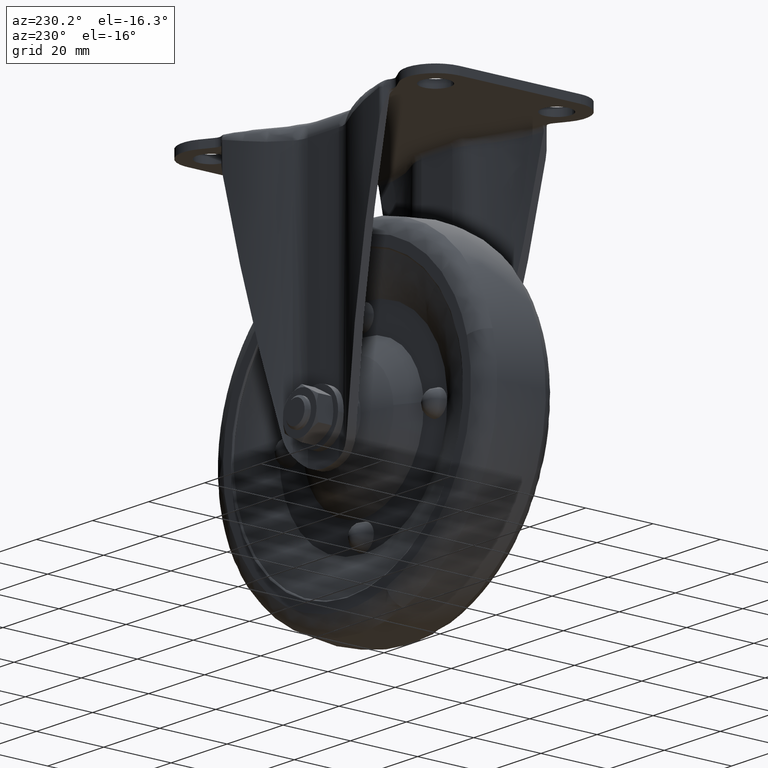
[diagram: clean part render]
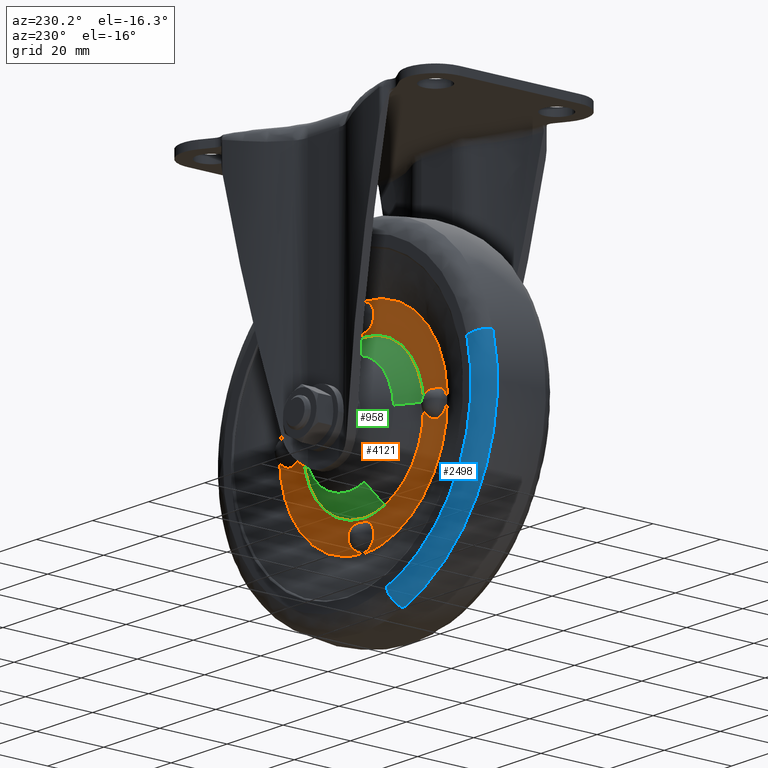
[diagram: same view with three faces highlighted in distinct colors, each labeled with its STEP entity id]
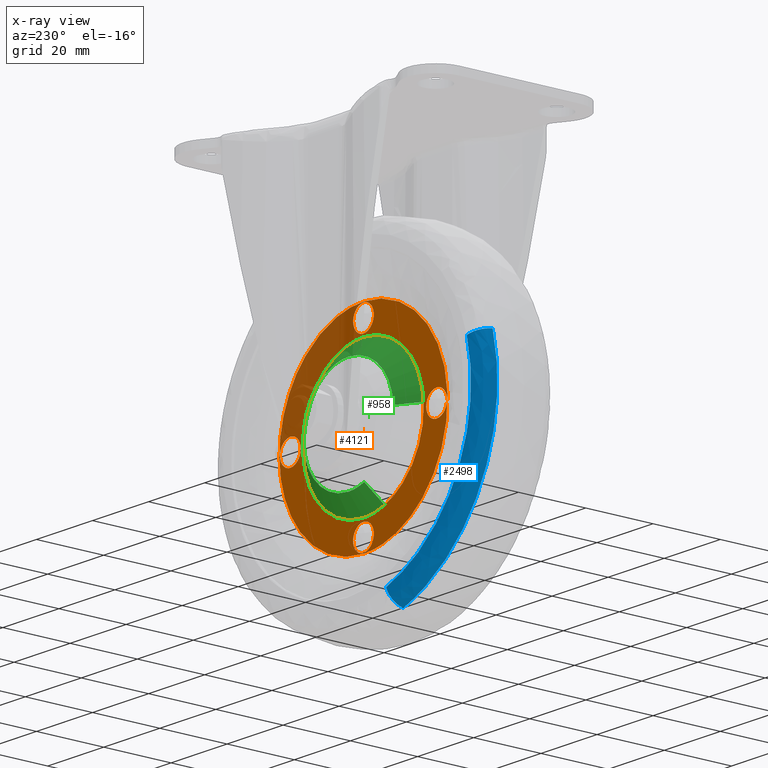
[diagram: x-ray of the same camera — body ghosted, the three highlighted faces saturated]
A machine part, auxiliary view with three faces highlighted in distinct colors.
The next image is the same camera in x-ray (body ghosted, the three faces saturated) — at least one of them is partly hidden behind the body in this view.
Their STEP definitions:

[orange] entity #4121 — the highlighted face is a freeform B-spline surface patch.
#897=CARTESIAN_POINT('',(-21.459898166078670,6.100000502482800,-71.687456399891289));
#898=VERTEX_POINT('',#897);
#904=CARTESIAN_POINT('',(0.0,6.100000502495250,-51.500000000000000));
#905=VERTEX_POINT('',#904);
#906=CARTESIAN_POINT('',(0.0,6.100000502495250,-51.500000000000000));
#907=CARTESIAN_POINT('',(-20.225180438267863,6.100000502495250,-51.500000000000000));
#908=CARTESIAN_POINT('',(-21.459898166078677,6.100000502482800,-71.687456399891289));
#916=(BOUNDED_CURVE()B_SPLINE_CURVE(2,(#906,#907,#908),.UNSPECIFIED.,.F.,.U.)B_SPLINE_CURVE_WITH_KNOTS((3,3),(0.500000000000000,0.739332962240226),.UNSPECIFIED.)CURVE()GEOMETRIC_REPRESENTATION_ITEM()RATIONAL_B_SPLINE_CURVE((1.0,0.719603993285207,0.976072041669468))REPRESENTATION_ITEM(''));
#917=EDGE_CURVE('',#905,#898,#916,.T.);
#919=CARTESIAN_POINT('',(0.0,6.100000502495250,-94.500000000000000));
#920=VERTEX_POINT('',#919);
#921=CARTESIAN_POINT('',(0.0,6.100000502495250,-94.500000000000000));
#922=CARTESIAN_POINT('',(21.499999999999996,6.100000502495252,-94.500000000000000));
#923=CARTESIAN_POINT('',(21.500000000000000,6.100000502495250,-73.0));
#924=CARTESIAN_POINT('',(21.499999999999996,6.100000502495252,-51.500000000000000));
#925=CARTESIAN_POINT('',(0.0,6.100000502495250,-51.500000000000000));
#933=(BOUNDED_CURVE()B_SPLINE_CURVE(2,(#921,#922,#923,#924,#925),.UNSPECIFIED.,.F.,.U.)B_SPLINE_CURVE_WITH_KNOTS((3,2,3),(0.0,0.250000000000000,0.500000000000000),.UNSPECIFIED.)CURVE()GEOMETRIC_REPRESENTATION_ITEM()RATIONAL_B_SPLINE_CURVE((1.0,0.707106781186548,1.0,0.707106781186548,1.0))REPRESENTATION_ITEM(''));
#934=EDGE_CURVE('',#920,#905,#933,.T.);
#936=CARTESIAN_POINT('',(-7.559786449543797,6.100000502485093,-93.127086943664438));
#937=VERTEX_POINT('',#936);
#938=CARTESIAN_POINT('',(-7.559786449543797,6.100000502485093,-93.127086943664452));
#939=CARTESIAN_POINT('',(-3.904558800568472,6.100000502495250,-94.500000000000000));
#940=CARTESIAN_POINT('',(0.0,6.100000502495250,-94.500000000000000));
#948=(BOUNDED_CURVE()B_SPLINE_CURVE(2,(#938,#939,#940),.UNSPECIFIED.,.F.,.U.)B_SPLINE_CURVE_WITH_KNOTS((3,3),(0.940284170897016,1.0),.UNSPECIFIED.)CURVE()GEOMETRIC_REPRESENTATION_ITEM()RATIONAL_B_SPLINE_CURVE((0.893499554633449,0.930038554399652,1.0))REPRESENTATION_ITEM(''));
#949=EDGE_CURVE('',#937,#920,#948,.T.);
#989=CARTESIAN_POINT('',(-21.459898166078677,6.100000502482800,-71.687456399891289));
#990=CARTESIAN_POINT('',(-21.499999999999996,6.100000502495250,-72.343115588971671));
#991=CARTESIAN_POINT('',(-21.500000000000000,6.100000502495250,-73.0));
#992=CARTESIAN_POINT('',(-21.500000000000000,6.100000502495250,-87.891106307239284));
#993=CARTESIAN_POINT('',(-7.559786449543797,6.100000502485093,-93.127086943664438));
#1001=(BOUNDED_CURVE()B_SPLINE_CURVE(2,(#989,#990,#991,#992,#993),.UNSPECIFIED.,.F.,.U.)B_SPLINE_CURVE_WITH_KNOTS((3,2,3),(0.739332962240226,0.750000000000000,0.940284170897016),.UNSPECIFIED.)CURVE()GEOMETRIC_REPRESENTATION_ITEM()RATIONAL_B_SPLINE_CURVE((0.976072041669467,0.987502787901340,1.0,0.777068226786896,0.893499554633448))REPRESENTATION_ITEM(''));
#1002=EDGE_CURVE('',#898,#937,#1001,.T.);
#1983=CARTESIAN_POINT('',(-22.764049032422779,6.100000502624674,-53.460346173472942));
#1984=VERTEX_POINT('',#1983);
#1998=CARTESIAN_POINT('',(0.0,6.100000502495250,-103.0));
#1999=VERTEX_POINT('',#1998);
#2000=CARTESIAN_POINT('',(-22.764049032422772,6.100000502624675,-53.460346173472935));
#2001=CARTESIAN_POINT('',(-30.0,6.100000502495250,-61.890359524253135));
#2002=CARTESIAN_POINT('',(-30.0,6.100000502495250,-73.0));
#2003=CARTESIAN_POINT('',(-29.999999999999993,6.100000502495250,-103.0));
#2004=CARTESIAN_POINT('',(0.0,6.100000502495250,-103.0));
#2012=(BOUNDED_CURVE()B_SPLINE_CURVE(2,(#2000,#2001,#2002,#2003,#2004),.UNSPECIFIED.,.F.,.U.)B_SPLINE_CURVE_WITH_KNOTS((3,2,3),(0.636484079657698,0.750000000000000,1.0),.UNSPECIFIED.)CURVE()GEOMETRIC_REPRESENTATION_ITEM()RATIONAL_B_SPLINE_CURVE((0.854789485132060,0.867007826817486,1.0,0.707106781186547,1.0))REPRESENTATION_ITEM(''));
#2013=EDGE_CURVE('',#1984,#1999,#2012,.T.);
#2015=CARTESIAN_POINT('',(20.809599174413300,6.100000502523308,-51.390729253335373));
#2016=VERTEX_POINT('',#2015);
#2017=CARTESIAN_POINT('',(0.0,6.100000502495250,-103.0));
#2018=CARTESIAN_POINT('',(29.999999999999993,6.100000502495250,-103.0));
#2019=CARTESIAN_POINT('',(30.0,6.100000502495250,-73.0));
#2020=CARTESIAN_POINT('',(30.0,6.100000502495250,-60.241030574281147));
#2021=CARTESIAN_POINT('',(20.809599174413297,6.100000502523308,-51.390729253335380));
#2029=(BOUNDED_CURVE()B_SPLINE_CURVE(2,(#2017,#2018,#2019,#2020,#2021),.UNSPECIFIED.,.F.,.U.)B_SPLINE_CURVE_WITH_KNOTS((3,2,3),(0.0,0.250000000000000,0.377844262562623),.UNSPECIFIED.)CURVE()GEOMETRIC_REPRESENTATION_ITEM()RATIONAL_B_SPLINE_CURVE((1.0,0.707106781186547,1.0,0.850221129724804,0.853629213191970))REPRESENTATION_ITEM(''));
#2030=EDGE_CURVE('',#1999,#2016,#2029,.T.);
#2076=CARTESIAN_POINT('',(0.0,6.100000502495250,-43.0));
#2077=VERTEX_POINT('',#2076);
#2078=CARTESIAN_POINT('',(20.809599174413297,6.100000502523308,-51.390729253335380));
#2079=CARTESIAN_POINT('',(12.096430858254688,6.100000502495250,-42.999999999999993));
#2080=CARTESIAN_POINT('',(0.0,6.100000502495250,-43.0));
#2088=(BOUNDED_CURVE()B_SPLINE_CURVE(2,(#2078,#2079,#2080),.UNSPECIFIED.,.F.,.U.)B_SPLINE_CURVE_WITH_KNOTS((3,3),(0.377844262562623,0.500000000000000),.UNSPECIFIED.)CURVE()GEOMETRIC_REPRESENTATION_ITEM()RATIONAL_B_SPLINE_CURVE((0.853629213191970,0.856885651461743,1.0))REPRESENTATION_ITEM(''));
#2089=EDGE_CURVE('',#2016,#2077,#2088,.T.);
#2091=CARTESIAN_POINT('',(0.0,6.100000502495250,-43.0));
#2092=CARTESIAN_POINT('',(-13.785350082590229,6.100000502495250,-43.0));
#2093=CARTESIAN_POINT('',(-22.764049032422776,6.100000502624674,-53.460346173472942));
#2101=(BOUNDED_CURVE()B_SPLINE_CURVE(2,(#2091,#2092,#2093),.UNSPECIFIED.,.F.,.U.)B_SPLINE_CURVE_WITH_KNOTS((3,3),(0.500000000000000,0.636484079657697),.UNSPECIFIED.)CURVE()GEOMETRIC_REPRESENTATION_ITEM()RATIONAL_B_SPLINE_CURVE((1.0,0.840098954369062,0.854789485132060))REPRESENTATION_ITEM(''));
#2102=EDGE_CURVE('',#2077,#1984,#2101,.T.);
#3457=CARTESIAN_POINT('',(-26.100000000000001,6.100000502495250,-76.698648388195437));
#3458=VERTEX_POINT('',#3457);
#3459=CARTESIAN_POINT('',(-26.100000000000001,6.100000502495250,-69.301351611804549));
#3460=VERTEX_POINT('',#3459);
#3461=CARTESIAN_POINT('',(-26.100000000000001,6.100000502495250,-76.698648388195437));
#3462=CARTESIAN_POINT('',(-29.798648388195442,6.100000502495250,-76.698648388195423));
#3463=CARTESIAN_POINT('',(-29.798648388195449,6.100000502495250,-73.0));
#3464=CARTESIAN_POINT('',(-29.798648388195442,6.100000502495250,-69.301351611804563));
#3465=CARTESIAN_POINT('',(-26.100000000000001,6.100000502495250,-69.301351611804549));
#3473=(BOUNDED_CURVE()B_SPLINE_CURVE(2,(#3461,#3462,#3463,#3464,#3465),.UNSPECIFIED.,.F.,.U.)B_SPLINE_CURVE_WITH_KNOTS((3,2,3),(0.0,0.250000000000000,0.500000000000000),.UNSPECIFIED.)CURVE()GEOMETRIC_REPRESENTATION_ITEM()RATIONAL_B_SPLINE_CURVE((1.0,0.707106781186547,1.0,0.707106781186547,1.0))REPRESENTATION_ITEM(''));
#3474=EDGE_CURVE('',#3458,#3460,#3473,.T.);
#3476=CARTESIAN_POINT('',(-26.100000000000001,6.100000502495250,-69.301351611804549));
#3477=CARTESIAN_POINT('',(-22.401351611804561,6.100000502495250,-69.301351611804563));
#3478=CARTESIAN_POINT('',(-22.401351611804561,6.100000502495250,-73.0));
#3479=CARTESIAN_POINT('',(-22.401351611804561,6.100000502495250,-76.698648388195423));
#3480=CARTESIAN_POINT('',(-26.100000000000001,6.100000502495250,-76.698648388195437));
#3488=(BOUNDED_CURVE()B_SPLINE_CURVE(2,(#3476,#3477,#3478,#3479,#3480),.UNSPECIFIED.,.F.,.U.)B_SPLINE_CURVE_WITH_KNOTS((3,2,3),(0.500000000000000,0.750000000000000,1.0),.UNSPECIFIED.)CURVE()GEOMETRIC_REPRESENTATION_ITEM()RATIONAL_B_SPLINE_CURVE((1.0,0.707106781186547,1.0,0.707106781186547,1.0))REPRESENTATION_ITEM(''));
#3489=EDGE_CURVE('',#3460,#3458,#3488,.T.);
#3619=CARTESIAN_POINT('',(0.0,6.100000502495250,-50.598648388195443));
#3620=VERTEX_POINT('',#3619);
#3621=CARTESIAN_POINT('',(0.0,6.100000502495250,-43.201351611804547));
#3622=VERTEX_POINT('',#3621);
#3623=CARTESIAN_POINT('',(0.0,6.100000502495250,-50.598648388195443));
#3624=CARTESIAN_POINT('',(-3.698648388195445,6.100000502495250,-50.598648388195436));
#3625=CARTESIAN_POINT('',(-3.698648388195445,6.100000502495250,-46.899999999999999));
#3626=CARTESIAN_POINT('',(-3.698648388195445,6.100000502495250,-43.201351611804547));
#3627=CARTESIAN_POINT('',(0.0,6.100000502495250,-43.201351611804547));
#3635=(BOUNDED_CURVE()B_SPLINE_CURVE(2,(#3623,#3624,#3625,#3626,#3627),.UNSPECIFIED.,.F.,.U.)B_SPLINE_CURVE_WITH_KNOTS((3,2,3),(0.0,0.250000000000000,0.500000000000000),.UNSPECIFIED.)CURVE()GEOMETRIC_REPRESENTATION_ITEM()RATIONAL_B_SPLINE_CURVE((1.0,0.707106781186547,1.0,0.707106781186547,1.0))REPRESENTATION_ITEM(''));
#3636=EDGE_CURVE('',#3620,#3622,#3635,.T.);
#3638=CARTESIAN_POINT('',(0.0,6.100000502495250,-43.201351611804547));
#3639=CARTESIAN_POINT('',(3.698648388195445,6.100000502495250,-43.201351611804547));
#3640=CARTESIAN_POINT('',(3.698648388195445,6.100000502495250,-46.899999999999999));
#3641=CARTESIAN_POINT('',(3.698648388195445,6.100000502495250,-50.598648388195436));
#3642=CARTESIAN_POINT('',(0.0,6.100000502495250,-50.598648388195443));
#3650=(BOUNDED_CURVE()B_SPLINE_CURVE(2,(#3638,#3639,#3640,#3641,#3642),.UNSPECIFIED.,.F.,.U.)B_SPLINE_CURVE_WITH_KNOTS((3,2,3),(0.500000000000000,0.750000000000000,1.0),.UNSPECIFIED.)CURVE()GEOMETRIC_REPRESENTATION_ITEM()RATIONAL_B_SPLINE_CURVE((1.0,0.707106781186547,1.0,0.707106781186547,1.0))REPRESENTATION_ITEM(''));
#3651=EDGE_CURVE('',#3622,#3620,#3650,.T.);
#3781=CARTESIAN_POINT('',(26.100000000000001,6.100000502495250,-76.698648388195437));
#3782=VERTEX_POINT('',#3781);
#3783=CARTESIAN_POINT('',(26.100000000000001,6.100000502495250,-69.301351611804549));
#3784=VERTEX_POINT('',#3783);
#3785=CARTESIAN_POINT('',(26.100000000000001,6.100000502495250,-76.698648388195437));
#3786=CARTESIAN_POINT('',(22.401351611804561,6.100000502495250,-76.698648388195423));
#3787=CARTESIAN_POINT('',(22.401351611804561,6.100000502495250,-73.0));
#3788=CARTESIAN_POINT('',(22.401351611804561,6.100000502495250,-69.301351611804563));
#3789=CARTESIAN_POINT('',(26.100000000000001,6.100000502495250,-69.301351611804549));
#3797=(BOUNDED_CURVE()B_SPLINE_CURVE(2,(#3785,#3786,#3787,#3788,#3789),.UNSPECIFIED.,.F.,.U.)B_SPLINE_CURVE_WITH_KNOTS((3,2,3),(0.0,0.250000000000000,0.500000000000000),.UNSPECIFIED.)CURVE()GEOMETRIC_REPRESENTATION_ITEM()RATIONAL_B_SPLINE_CURVE((1.0,0.707106781186547,1.0,0.707106781186547,1.0))REPRESENTATION_ITEM(''));
#3798=EDGE_CURVE('',#3782,#3784,#3797,.T.);
#3800=CARTESIAN_POINT('',(26.100000000000001,6.100000502495250,-69.301351611804549));
#3801=CARTESIAN_POINT('',(29.798648388195442,6.100000502495250,-69.301351611804563));
#3802=CARTESIAN_POINT('',(29.798648388195449,6.100000502495250,-73.0));
#3803=CARTESIAN_POINT('',(29.798648388195442,6.100000502495250,-76.698648388195423));
#3804=CARTESIAN_POINT('',(26.100000000000001,6.100000502495250,-76.698648388195437));
#3812=(BOUNDED_CURVE()B_SPLINE_CURVE(2,(#3800,#3801,#3802,#3803,#3804),.UNSPECIFIED.,.F.,.U.)B_SPLINE_CURVE_WITH_KNOTS((3,2,3),(0.500000000000000,0.750000000000000,1.0),.UNSPECIFIED.)CURVE()GEOMETRIC_REPRESENTATION_ITEM()RATIONAL_B_SPLINE_CURVE((1.0,0.707106781186547,1.0,0.707106781186547,1.0))REPRESENTATION_ITEM(''));
#3813=EDGE_CURVE('',#3784,#3782,#3812,.T.);
#3943=CARTESIAN_POINT('',(0.0,6.100000502495250,-102.798648388195500));
#3944=VERTEX_POINT('',#3943);
#3945=CARTESIAN_POINT('',(0.0,6.100000502495250,-95.401351611804543));
#3946=VERTEX_POINT('',#3945);
#3947=CARTESIAN_POINT('',(0.0,6.100000502495250,-102.798648388195500));
#3948=CARTESIAN_POINT('',(-3.698648388195445,6.100000502495250,-102.798648388195430));
#3949=CARTESIAN_POINT('',(-3.698648388195445,6.100000502495250,-99.099999999999994));
#3950=CARTESIAN_POINT('',(-3.698648388195445,6.100000502495250,-95.401351611804543));
#3951=CARTESIAN_POINT('',(0.0,6.100000502495250,-95.401351611804543));
#3959=(BOUNDED_CURVE()B_SPLINE_CURVE(2,(#3947,#3948,#3949,#3950,#3951),.UNSPECIFIED.,.F.,.U.)B_SPLINE_CURVE_WITH_KNOTS((3,2,3),(0.0,0.250000000000000,0.500000000000000),.UNSPECIFIED.)CURVE()GEOMETRIC_REPRESENTATION_ITEM()RATIONAL_B_SPLINE_CURVE((1.0,0.707106781186547,1.0,0.707106781186547,1.0))REPRESENTATION_ITEM(''));
#3960=EDGE_CURVE('',#3944,#3946,#3959,.T.);
#3962=CARTESIAN_POINT('',(0.0,6.100000502495250,-95.401351611804543));
#3963=CARTESIAN_POINT('',(3.698648388195445,6.100000502495250,-95.401351611804543));
#3964=CARTESIAN_POINT('',(3.698648388195445,6.100000502495250,-99.099999999999994));
#3965=CARTESIAN_POINT('',(3.698648388195445,6.100000502495250,-102.798648388195430));
#3966=CARTESIAN_POINT('',(0.0,6.100000502495250,-102.798648388195500));
#3974=(BOUNDED_CURVE()B_SPLINE_CURVE(2,(#3962,#3963,#3964,#3965,#3966),.UNSPECIFIED.,.F.,.U.)B_SPLINE_CURVE_WITH_KNOTS((3,2,3),(0.500000000000000,0.750000000000000,1.0),.UNSPECIFIED.)CURVE()GEOMETRIC_REPRESENTATION_ITEM()RATIONAL_B_SPLINE_CURVE((1.0,0.707106781186547,1.0,0.707106781186547,1.0))REPRESENTATION_ITEM(''));
#3975=EDGE_CURVE('',#3946,#3944,#3974,.T.);
#4088=CARTESIAN_POINT('',(-32.986812360194861,6.100000502495250,-40.003000116291638));
#4089=CARTESIAN_POINT('',(-32.986812360194861,6.100000502495250,-105.997001493033810));
#4090=CARTESIAN_POINT('',(32.994034791447142,6.100000502495250,-40.003000116291638));
#4091=CARTESIAN_POINT('',(32.994034791447142,6.100000502495250,-105.997001493033810));
#4092=B_SPLINE_SURFACE_WITH_KNOTS('',1,1,((#4088,#4090),(#4089,#4091)),.UNSPECIFIED.,.F.,.F.,.U.,(2,2),(2,2),(0.0,65.994001376742148),(0.0,65.980847151641996),.UNSPECIFIED.);
#4093=ORIENTED_EDGE('',*,*,#2013,.F.);
#4094=ORIENTED_EDGE('',*,*,#2102,.F.);
#4095=ORIENTED_EDGE('',*,*,#2089,.F.);
#4096=ORIENTED_EDGE('',*,*,#2030,.F.);
#4097=EDGE_LOOP('',(#4093,#4094,#4095,#4096));
#4098=FACE_OUTER_BOUND('',#4097,.T.);
#4099=ORIENTED_EDGE('',*,*,#3960,.F.);
#4100=ORIENTED_EDGE('',*,*,#3975,.F.);
#4101=EDGE_LOOP('',(#4099,#4100));
#4102=FACE_BOUND('',#4101,.T.);
#4103=ORIENTED_EDGE('',*,*,#3636,.F.);
#4104=ORIENTED_EDGE('',*,*,#3651,.F.);
#4105=EDGE_LOOP('',(#4103,#4104));
#4106=FACE_BOUND('',#4105,.T.);
#4107=ORIENTED_EDGE('',*,*,#934,.T.);
#4108=ORIENTED_EDGE('',*,*,#917,.T.);
#4109=ORIENTED_EDGE('',*,*,#1002,.T.);
#4110=ORIENTED_EDGE('',*,*,#949,.T.);
#4111=EDGE_LOOP('',(#4107,#4108,#4109,#4110));
#4112=FACE_BOUND('',#4111,.T.);
#4113=ORIENTED_EDGE('',*,*,#3798,.F.);
#4114=ORIENTED_EDGE('',*,*,#3813,.F.);
#4115=EDGE_LOOP('',(#4113,#4114));
#4116=FACE_BOUND('',#4115,.T.);
#4117=ORIENTED_EDGE('',*,*,#3474,.F.);
#4118=ORIENTED_EDGE('',*,*,#3489,.F.);
#4119=EDGE_LOOP('',(#4117,#4118));
#4120=FACE_BOUND('',#4119,.T.);
#4121=ADVANCED_FACE('',(#4098,#4102,#4106,#4112,#4116,#4120),#4092,.F.);

[blue] entity #2498 — the highlighted face is a freeform B-spline surface patch.
#2299=CARTESIAN_POINT('',(-13.972526002667140,11.000000502495240,-115.006227576638910));
#2300=VERTEX_POINT('',#2299);
#2333=CARTESIAN_POINT('',(-42.736591828179542,11.000000502495240,-61.452777080198601));
#2334=VERTEX_POINT('',#2333);
#2348=CARTESIAN_POINT('',(-47.422423129892202,7.200003991381710,-60.186687851168323));
#2349=VERTEX_POINT('',#2348);
#2350=CARTESIAN_POINT('',(-42.736591828179542,11.000000502495240,-61.452777080198594));
#2351=CARTESIAN_POINT('',(-46.515485588908668,11.000000498879672,-60.431738041464492));
#2352=CARTESIAN_POINT('',(-47.422423129892195,7.200003991381710,-60.186687851168323));
#2360=(BOUNDED_CURVE()B_SPLINE_CURVE(2,(#2350,#2351,#2352),.UNSPECIFIED.,.F.,.U.)B_SPLINE_CURVE_WITH_KNOTS((3,3),(-1.686821146499185,-0.303121844745668),.UNSPECIFIED.)CURVE()GEOMETRIC_REPRESENTATION_ITEM()RATIONAL_B_SPLINE_CURVE((0.894853527352496,0.705698180846239,0.897623297889692))REPRESENTATION_ITEM(''));
#2361=EDGE_CURVE('',#2334,#2349,#2360,.T.);
#2410=CARTESIAN_POINT('',(-15.504502901210079,7.200006669620899,-119.611988376216400));
#2411=VERTEX_POINT('',#2410);
#2425=CARTESIAN_POINT('',(-13.972526002667145,11.000000502495240,-115.006227576638960));
#2426=CARTESIAN_POINT('',(-15.208000142512290,11.000000508042460,-118.720543729598190));
#2427=CARTESIAN_POINT('',(-15.504502901210076,7.200006669620900,-119.611988376216430));
#2435=(BOUNDED_CURVE()B_SPLINE_CURVE(2,(#2425,#2426,#2427),.UNSPECIFIED.,.F.,.U.)B_SPLINE_CURVE_WITH_KNOTS((3,3),(-1.686821147169568,-0.303122491366769),.UNSPECIFIED.)CURVE()GEOMETRIC_REPRESENTATION_ITEM()RATIONAL_B_SPLINE_CURVE((0.874724514028209,0.689824151703314,0.877431805272755))REPRESENTATION_ITEM(''));
#2436=EDGE_CURVE('',#2300,#2411,#2435,.T.);
#2441=CARTESIAN_POINT('',(-42.364634889128119,10.990696392161878,-61.245003658406951));
#2442=CARTESIAN_POINT('',(-42.403393934541960,10.990696392161876,-61.388451958922609));
#2443=CARTESIAN_POINT('',(-53.271820501052282,10.990696392161876,-101.612799684686560));
#2444=CARTESIAN_POINT('',(-13.731622596024726,10.990696392161876,-114.765050559133260));
#2445=CARTESIAN_POINT('',(-13.587330830058827,10.990696392161876,-114.813046310435780));
#2446=CARTESIAN_POINT('',(-46.626415771244680,11.260881448562634,-60.062479158690159));
#2447=CARTESIAN_POINT('',(-46.669073883868371,11.260881448562634,-60.220358014934895));
#2448=CARTESIAN_POINT('',(-58.630838152475313,11.260881448562634,-104.491178856350830));
#2449=CARTESIAN_POINT('',(-15.112990966443409,11.260881448562630,-118.966514692587220));
#2450=CARTESIAN_POINT('',(-14.954183794142741,11.260881448562630,-119.019338701606510));
#2451=CARTESIAN_POINT('',(-47.397323195434609,6.902760315737311,-59.848573999946886));
#2452=CARTESIAN_POINT('',(-47.440686604727141,6.902760315737310,-60.009063178696316));
#2453=CARTESIAN_POINT('',(-59.600223160320958,6.902760315737309,-105.011844731591110));
#2454=CARTESIAN_POINT('',(-15.362864707434071,6.902760315737312,-119.726511506721650));
#2455=CARTESIAN_POINT('',(-15.201431864124455,6.902760315737312,-119.780208892346370));
#2463=(BOUNDED_SURFACE()B_SPLINE_SURFACE(2,2,((#2441,#2446,#2451),(#2442,#2447,#2452),(#2443,#2448,#2453),(#2444,#2449,#2454),(#2445,#2450,#2455)),.UNSPECIFIED.,.F.,.F.,.U.)B_SPLINE_SURFACE_WITH_KNOTS((3,1,1,3),(3,3),(0.0,0.391071696516262,78.605372774175663,78.996484409758480),(0.0,7.586808457404248),.UNSPECIFIED.)GEOMETRIC_REPRESENTATION_ITEM()RATIONAL_B_SPLINE_SURFACE(((0.917273015512774,0.687640405469958,0.920327933515211),(0.915987048114127,0.686676370631396,0.919037683285945),(0.657507726683895,0.492905462310799,0.659697513319955),(0.895308823225406,0.671174788543614,0.898290590916765),(0.896492034057859,0.672061791172956,0.899477742355790)))REPRESENTATION_ITEM('')SURFACE());
#2464=CARTESIAN_POINT('',(-42.736591828179556,11.000000502495240,-61.452777080198601));
#2465=CARTESIAN_POINT('',(-44.269116074793743,11.000000502495245,-67.124691769181936));
#2466=CARTESIAN_POINT('',(-44.269116074793743,11.000000502495240,-73.0));
#2467=CARTESIAN_POINT('',(-44.269116074793750,11.000000502495238,-104.928676769682820));
#2468=CARTESIAN_POINT('',(-13.972526002667145,11.000000502495240,-115.006227576638930));
#2476=(BOUNDED_CURVE()B_SPLINE_CURVE(2,(#2464,#2465,#2466,#2467,#2468),.UNSPECIFIED.,.F.,.U.)B_SPLINE_CURVE_WITH_KNOTS((3,2,3),(0.705522207669902,0.750000000000000,0.946340696667622),.UNSPECIFIED.)CURVE()GEOMETRIC_REPRESENTATION_ITEM()RATIONAL_B_SPLINE_CURVE((0.914323587274497,0.947891024954885,1.0,0.769972565475778,0.901255104928769))REPRESENTATION_ITEM(''));
#2477=EDGE_CURVE('',#2334,#2300,#2476,.T.);
#2478=ORIENTED_EDGE('',*,*,#2477,.T.);
#2479=ORIENTED_EDGE('',*,*,#2436,.T.);
#2480=CARTESIAN_POINT('',(-47.422423129892195,7.200003991381710,-60.186687851168315));
#2481=CARTESIAN_POINT('',(-49.122980042489381,7.200004384676505,-66.480496207796364));
#2482=CARTESIAN_POINT('',(-49.122980104650964,7.200004754064013,-72.999999045948300));
#2483=CARTESIAN_POINT('',(-49.122980442461113,7.200006761458972,-108.429505565764050));
#2484=CARTESIAN_POINT('',(-15.504502901210074,7.200006669620900,-119.611988376216460));
#2492=(BOUNDED_CURVE()B_SPLINE_CURVE(2,(#2480,#2481,#2482,#2483,#2484),.UNSPECIFIED.,.F.,.U.)B_SPLINE_CURVE_WITH_KNOTS((3,2,3),(0.705522210431937,0.750000000000000,0.946340812007468),.UNSPECIFIED.)CURVE()GEOMETRIC_REPRESENTATION_ITEM()RATIONAL_B_SPLINE_CURVE((0.914323591443518,0.947891028190810,1.0,0.769972430346743,0.901255259172084))REPRESENTATION_ITEM(''));
#2493=EDGE_CURVE('',#2349,#2411,#2492,.T.);
#2494=ORIENTED_EDGE('',*,*,#2493,.F.);
#2495=ORIENTED_EDGE('',*,*,#2361,.F.);
#2496=EDGE_LOOP('',(#2478,#2479,#2494,#2495));
#2497=FACE_OUTER_BOUND('',#2496,.T.);
#2498=ADVANCED_FACE('',(#2497),#2463,.T.);

[green] entity #958 — the highlighted face is a freeform B-spline surface patch.
#807=CARTESIAN_POINT('',(-5.599629111240644,10.668807424715650,-87.908386993268593));
#808=CARTESIAN_POINT('',(-3.360074745992907,10.668807424715656,-88.749569464954476));
#809=CARTESIAN_POINT('',(-0.972217588619111,10.668807424715650,-88.895617065244551));
#810=CARTESIAN_POINT('',(14.923399476625450,10.668807424715652,-89.867834653863682));
#811=CARTESIAN_POINT('',(15.895617065244560,10.668807424715650,-73.972217588619117));
#812=CARTESIAN_POINT('',(16.867834653863667,10.668807424715652,-58.076600523374559));
#813=CARTESIAN_POINT('',(0.972217588619111,10.668807424715650,-57.104382934755442));
#814=CARTESIAN_POINT('',(-14.923399476625450,10.668807424715652,-56.132165346136333));
#815=CARTESIAN_POINT('',(-15.895617065244560,10.668807424715650,-72.027782411380883));
#816=CARTESIAN_POINT('',(-7.608790382873257,5.985780329439738,-93.257554442458897));
#817=CARTESIAN_POINT('',(-4.565678173528488,5.985780329439739,-94.400555340135668));
#818=CARTESIAN_POINT('',(-1.321051750283933,5.985780329439738,-94.599005193590784));
#819=CARTESIAN_POINT('',(20.277953443306856,5.985780329439738,-95.920056943874712));
#820=CARTESIAN_POINT('',(21.599005193590781,5.985780329439738,-74.321051750283928));
#821=CARTESIAN_POINT('',(22.920056943874719,5.985780329439738,-52.722046556693144));
#822=CARTESIAN_POINT('',(1.321051750283933,5.985780329439738,-51.400994806409223));
#823=CARTESIAN_POINT('',(-20.277953443306856,5.985780329439738,-50.079943056125288));
#824=CARTESIAN_POINT('',(-21.599005193590781,5.985780329439738,-71.678948249716072));
#832=(BOUNDED_SURFACE()B_SPLINE_SURFACE(2,1,((#807,#816),(#808,#817),(#809,#818),(#810,#819),(#811,#820),(#812,#821),(#813,#822),(#814,#823),(#815,#824)),.UNSPECIFIED.,.F.,.F.,.U.)B_SPLINE_SURFACE_WITH_KNOTS((3,2,2,2,3),(2,2),(0.0,7.170655425778187,43.023932554669123,78.877209683560054,114.730486812451010),(0.0,7.387899849753910),.UNSPECIFIED.)GEOMETRIC_REPRESENTATION_ITEM()RATIONAL_B_SPLINE_SURFACE(((0.906274169979695,0.906274169979695),(0.941421356237309,0.941421356237309),(1.0,1.0),(0.707106781186548,0.707106781186548),(1.0,1.0),(0.707106781186548,0.707106781186548),(1.0,1.0),(0.707106781186548,0.707106781186548),(1.0,1.0)))REPRESENTATION_ITEM('')SURFACE());
#833=CARTESIAN_POINT('',(-5.647440649117110,10.557366310098409,-88.035679871696317));
#834=VERTEX_POINT('',#833);
#835=CARTESIAN_POINT('',(0.0,10.557365949088370,-89.061297516494477));
#836=VERTEX_POINT('',#835);
#837=CARTESIAN_POINT('',(-5.647440649117110,10.557366310098413,-88.035679871696303));
#838=CARTESIAN_POINT('',(-2.916850208262096,10.557365949088373,-89.061297516494477));
#839=CARTESIAN_POINT('',(0.0,10.557365949088370,-89.061297516494477));
#847=(BOUNDED_CURVE()B_SPLINE_CURVE(2,(#837,#838,#839),.UNSPECIFIED.,.F.,.U.)B_SPLINE_CURVE_WITH_KNOTS((3,3),(0.940284141650363,1.0),.UNSPECIFIED.)CURVE()GEOMETRIC_REPRESENTATION_ITEM()RATIONAL_B_SPLINE_CURVE((0.893499518842496,0.930038520135066,1.0))REPRESENTATION_ITEM(''));
#848=EDGE_CURVE('',#834,#836,#847,.T.);
#849=ORIENTED_EDGE('',*,*,#848,.T.);
#850=CARTESIAN_POINT('',(15.953865078638801,10.557373109539540,-74.854504331282044));
#851=VERTEX_POINT('',#850);
#852=CARTESIAN_POINT('',(0.0,10.557365949088370,-89.061297516494477));
#853=CARTESIAN_POINT('',(14.302444362237599,10.557369529313958,-89.061293147890993));
#854=CARTESIAN_POINT('',(15.953865078638797,10.557373109539540,-74.854504331282044));
#862=(BOUNDED_CURVE()B_SPLINE_CURVE(2,(#852,#853,#854),.UNSPECIFIED.,.F.,.U.)B_SPLINE_CURVE_WITH_KNOTS((3,3),(0.0,0.229999999992698),.UNSPECIFIED.)CURVE()GEOMETRIC_REPRESENTATION_ITEM()RATIONAL_B_SPLINE_CURVE((1.0,0.730538238700178,0.956886118176288))REPRESENTATION_ITEM(''));
#863=EDGE_CURVE('',#836,#851,#862,.T.);
#864=ORIENTED_EDGE('',*,*,#863,.T.);
#865=CARTESIAN_POINT('',(0.0,10.557373109523001,-56.938711220365803));
#866=VERTEX_POINT('',#865);
#867=CARTESIAN_POINT('',(15.953865078638799,10.557373109539542,-74.854504331282044));
#868=CARTESIAN_POINT('',(16.061288779634204,10.557373109522997,-73.930363469288565));
#869=CARTESIAN_POINT('',(16.061288779634200,10.557373109523001,-73.0));
#870=CARTESIAN_POINT('',(16.061288779634200,10.557373109523001,-56.938711220365789));
#871=CARTESIAN_POINT('',(0.0,10.557373109523001,-56.938711220365803));
#879=(BOUNDED_CURVE()B_SPLINE_CURVE(2,(#867,#868,#869,#870,#871),.UNSPECIFIED.,.F.,.U.)B_SPLINE_CURVE_WITH_KNOTS((3,2,3),(0.229999999992698,0.250000000000000,0.500000000000000),.UNSPECIFIED.)CURVE()GEOMETRIC_REPRESENTATION_ITEM()RATIONAL_B_SPLINE_CURVE((0.956886118176288,0.976568542486369,1.0,0.707106781186547,1.0))REPRESENTATION_ITEM(''));
#880=EDGE_CURVE('',#851,#866,#879,.T.);
#881=ORIENTED_EDGE('',*,*,#880,.T.);
#882=CARTESIAN_POINT('',(-16.031331861240009,10.557370814719199,-72.019481738831018));
#883=VERTEX_POINT('',#882);
#884=CARTESIAN_POINT('',(0.0,10.557373109523001,-56.938711220365803));
#885=CARTESIAN_POINT('',(-15.108948375123351,10.557373642945649,-56.938711193676752));
#886=CARTESIAN_POINT('',(-16.031331861240005,10.557370814719198,-72.019481738831018));
#894=(BOUNDED_CURVE()B_SPLINE_CURVE(2,(#884,#885,#886),.UNSPECIFIED.,.F.,.U.)B_SPLINE_CURVE_WITH_KNOTS((3,3),(0.500000000000000,0.739332918258685),.UNSPECIFIED.)CURVE()GEOMETRIC_REPRESENTATION_ITEM()RATIONAL_B_SPLINE_CURVE((1.0,0.719604044812788,0.976071947408671))REPRESENTATION_ITEM(''));
#895=EDGE_CURVE('',#866,#883,#894,.T.);
#896=ORIENTED_EDGE('',*,*,#895,.T.);
#897=CARTESIAN_POINT('',(-21.459898166078670,6.100000502482800,-71.687456399891289));
#898=VERTEX_POINT('',#897);
#899=CARTESIAN_POINT('',(-16.031331861240009,10.557370814719199,-72.019481738831018));
#900=CARTESIAN_POINT('',(-21.459898166078670,6.100000502482800,-71.687456399891289));
#901=QUASI_UNIFORM_CURVE('',1,(#899,#900),.UNSPECIFIED.,.F.,.U.);
#902=EDGE_CURVE('',#883,#898,#901,.T.);
#903=ORIENTED_EDGE('',*,*,#902,.T.);
#904=CARTESIAN_POINT('',(0.0,6.100000502495250,-51.500000000000000));
#905=VERTEX_POINT('',#904);
#906=CARTESIAN_POINT('',(0.0,6.100000502495250,-51.500000000000000));
#907=CARTESIAN_POINT('',(-20.225180438267863,6.100000502495250,-51.500000000000000));
#908=CARTESIAN_POINT('',(-21.459898166078677,6.100000502482800,-71.687456399891289));
#916=(BOUNDED_CURVE()B_SPLINE_CURVE(2,(#906,#907,#908),.UNSPECIFIED.,.F.,.U.)B_SPLINE_CURVE_WITH_KNOTS((3,3),(0.500000000000000,0.739332962240226),.UNSPECIFIED.)CURVE()GEOMETRIC_REPRESENTATION_ITEM()RATIONAL_B_SPLINE_CURVE((1.0,0.719603993285207,0.976072041669468))REPRESENTATION_ITEM(''));
#917=EDGE_CURVE('',#905,#898,#916,.T.);
#918=ORIENTED_EDGE('',*,*,#917,.F.);
#919=CARTESIAN_POINT('',(0.0,6.100000502495250,-94.500000000000000));
#920=VERTEX_POINT('',#919);
#921=CARTESIAN_POINT('',(0.0,6.100000502495250,-94.500000000000000));
#922=CARTESIAN_POINT('',(21.499999999999996,6.100000502495252,-94.500000000000000));
#923=CARTESIAN_POINT('',(21.500000000000000,6.100000502495250,-73.0));
#924=CARTESIAN_POINT('',(21.499999999999996,6.100000502495252,-51.500000000000000));
#925=CARTESIAN_POINT('',(0.0,6.100000502495250,-51.500000000000000));
#933=(BOUNDED_CURVE()B_SPLINE_CURVE(2,(#921,#922,#923,#924,#925),.UNSPECIFIED.,.F.,.U.)B_SPLINE_CURVE_WITH_KNOTS((3,2,3),(0.0,0.250000000000000,0.500000000000000),.UNSPECIFIED.)CURVE()GEOMETRIC_REPRESENTATION_ITEM()RATIONAL_B_SPLINE_CURVE((1.0,0.707106781186548,1.0,0.707106781186548,1.0))REPRESENTATION_ITEM(''));
#934=EDGE_CURVE('',#920,#905,#933,.T.);
#935=ORIENTED_EDGE('',*,*,#934,.F.);
#936=CARTESIAN_POINT('',(-7.559786449543797,6.100000502485093,-93.127086943664438));
#937=VERTEX_POINT('',#936);
#938=CARTESIAN_POINT('',(-7.559786449543797,6.100000502485093,-93.127086943664452));
#939=CARTESIAN_POINT('',(-3.904558800568472,6.100000502495250,-94.500000000000000));
#940=CARTESIAN_POINT('',(0.0,6.100000502495250,-94.500000000000000));
#948=(BOUNDED_CURVE()B_SPLINE_CURVE(2,(#938,#939,#940),.UNSPECIFIED.,.F.,.U.)B_SPLINE_CURVE_WITH_KNOTS((3,3),(0.940284170897016,1.0),.UNSPECIFIED.)CURVE()GEOMETRIC_REPRESENTATION_ITEM()RATIONAL_B_SPLINE_CURVE((0.893499554633449,0.930038554399652,1.0))REPRESENTATION_ITEM(''));
#949=EDGE_CURVE('',#937,#920,#948,.T.);
#950=ORIENTED_EDGE('',*,*,#949,.F.);
#951=CARTESIAN_POINT('',(-5.647440649117110,10.557366310098409,-88.035679871696317));
#952=CARTESIAN_POINT('',(-7.559786449543797,6.100000502485093,-93.127086943664438));
#953=QUASI_UNIFORM_CURVE('',1,(#951,#952),.UNSPECIFIED.,.F.,.U.);
#954=EDGE_CURVE('',#834,#937,#953,.T.);
#955=ORIENTED_EDGE('',*,*,#954,.F.);
#956=EDGE_LOOP('',(#849,#864,#881,#896,#903,#918,#935,#950,#955));
#957=FACE_OUTER_BOUND('',#956,.T.);
#958=ADVANCED_FACE('',(#957),#832,.T.);